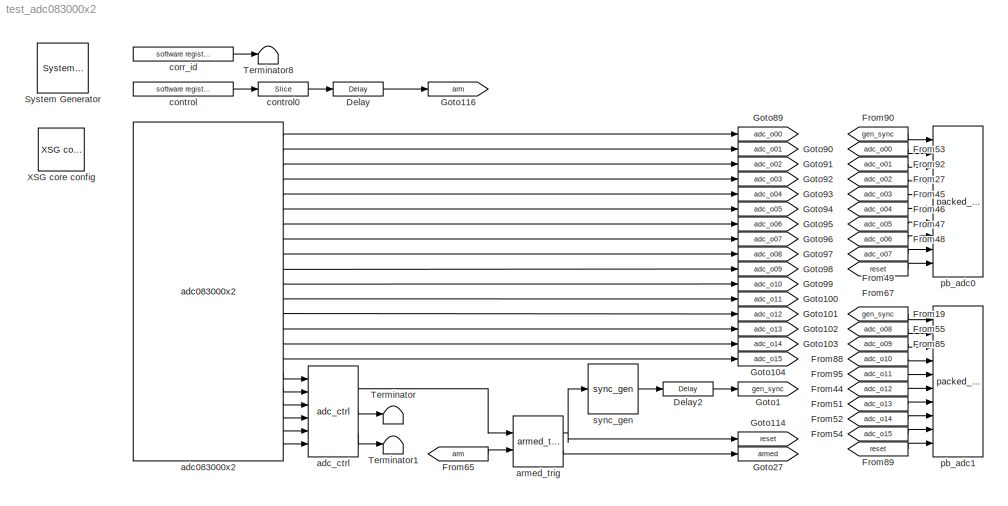
MODEL test_adc083000x2
KIND model
BLOCK [Reference]  System Generator  REF=xbsIndex_r4/ System Generator
  AttributesFormatString = System\\nGenerator
  FunctionWithSeparateData = off
  Ports = []
  RTWMemSecDataConstants = Inherit from model
  RTWMemSecDataInternal = Inherit from model
  RTWMemSecDataParameters = Inherit from model
  RTWMemSecFuncExecute = Inherit from model
  RTWMemSecFuncInitTerm = Inherit from model
  SID = 1
  ShowPortLabels = FromPortIcon
  SourceBlock = xbsIndex_r4/ System Generator
  SourceType = Xilinx System Generator Block
  SystemSampleTime = -1
  Tag = genX
  UserData = DataTag0
  UserDataPersistent = on
  block_type = sysgen
  block_version = 10.1.3
  clock_wrapper = Clock Enables
  core_generation = According to Block Masks
  dbl_ovrd = According to Block Masks
  dcm_input_clock_period = 100
  deprecated_control = off
  directory = ./test_adc083000x2/sysgen
  eval_field = 0
  has_advanced_control = 0
  incr_netlist = off
  infoedit = System Generator
  package = ff1136
  part = xc5vsx95t
  run_coregen = off
  sg_icon_stat = 51,50,-1,-1,red,beige,0,07734,right
  sg_mask_display = fprintf('','COMMENT: begin icon graphics');\npatch([0 51 51 0 ],[0 0 50 50 ],[0.93 0.92 0.86]);\npatch([12 4 16 4 12 25 29 33 47 36 25 17 29 17 25 36 47 33 29 25 12 ],[5 13 25 37 45 45 41 45 45 34 45 37 25 13 5 16 5 5 9 5 5 ],[0.6 0.2 0.25]);\nplot([0 51 51 0 0 ],[0 0 50 50 0 ]);\nfprintf('','COMMENT: end icon graphics');\nfprintf('','COMMENT: begin icon text');\nfprintf('','COMMENT: end icon text...<+5ch>
  sggui_pos = -1,-1,-1,-1
  simulink_period = 1
  speed = -1
  synthesis_tool = XST
  sysclk_period = 2.6667
  testbench = off
  trim_vbits = Everywhere in SubSystem
  xilinxfamily = virtex5
BLOCK [Reference] Delay  REF=xbsIndex_r4/Delay
  Ports = [1, 1]
  SID = 60
  SourceBlock = xbsIndex_r4/Delay
  SourceType = Xilinx Delay Block
  block_type = delay
  block_version = 11.3
  dbl_ovrd = off
  en = off
  has_advanced_control = 0
  infoedit = Hardware notes: A delay line is a chain, each link of which is an SRL16 followed by a flip-flop.
  latency = 1
  reg_retiming = on
  sg_icon_stat = 50,14,1,1,white,blue,0,07b98262,right,
  sg_mask_display = fprintf('','COMMENT: begin icon graphics');\npatch([0 1 1 0 ],[0 0 1 1 ],[0.77 0.82 0.91]);\npatch([0.42 0.38 0.44 0.38 0.42 0.5 0.52 0.54 0.62 0.56 0.5 0.46 0.52 0.46 0.5 0.56 0.62 0.54 0.52 0.5 0.42 ],[0.142857 0.285714 0.5 0.714286 0.857143 0.857143 0.785714 0.857143 0.857143 0.642857 0.857143 0.714286 0.5 0.285714 0.142857 0.357143 0.142857 0.142857 0.214286 0.142857 0.142857 ],[0.98 0.96 0.92...<+209ch>
  sggui_pos = 0,0,543,392
  xl_area = [0,0,0,0,0,0,0]
  xl_use_area = off
BLOCK [Reference] Delay2  REF=xbsIndex_r4/Delay
  Ports = [1, 1]
  SID = 109
  SourceBlock = xbsIndex_r4/Delay
  SourceType = Xilinx Delay Block
  block_type = delay
  block_version = 11.3
  dbl_ovrd = off
  en = off
  has_advanced_control = 0
  infoedit = Hardware notes: A delay line is a chain, each link of which is an SRL16 followed by a flip-flop.
  latency = 1
  reg_retiming = on
  sg_icon_stat = 50,14,1,1,white,blue,0,07b98262,right,
  sg_mask_display = fprintf('','COMMENT: begin icon graphics');\npatch([0 1 1 0 ],[0 0 1 1 ],[0.77 0.82 0.91]);\npatch([0.42 0.38 0.44 0.38 0.42 0.5 0.52 0.54 0.62 0.56 0.5 0.46 0.52 0.46 0.5 0.56 0.62 0.54 0.52 0.5 0.42 ],[0.142857 0.285714 0.5 0.714286 0.857143 0.857143 0.785714 0.857143 0.857143 0.642857 0.857143 0.714286 0.5 0.285714 0.142857 0.357143 0.142857 0.142857 0.214286 0.142857 0.142857 ],[0.98 0.96 0.92...<+209ch>
  sggui_pos = 0,0,543,392
  xl_area = [0,0,0,0,0,0,0]
  xl_use_area = off
BLOCK [From] From19
  CloseFcn = tagdialog Close
  GotoTag = gen_sync
  SID = 87
BLOCK [From] From27
  CloseFcn = tagdialog Close
  GotoTag = adc_o02
  SID = 88
BLOCK [From] From44
  CloseFcn = tagdialog Close
  GotoTag = adc_o12
  SID = 89
BLOCK [From] From45
  CloseFcn = tagdialog Close
  GotoTag = adc_o03
  SID = 90
BLOCK [From] From46
  CloseFcn = tagdialog Close
  GotoTag = adc_o04
  SID = 91
BLOCK [From] From47
  CloseFcn = tagdialog Close
  GotoTag = adc_o05
  SID = 92
BLOCK [From] From48
  CloseFcn = tagdialog Close
  GotoTag = adc_o06
  SID = 93
BLOCK [From] From49
  CloseFcn = tagdialog Close
  GotoTag = adc_o07
  SID = 94
BLOCK [From] From51
  CloseFcn = tagdialog Close
  GotoTag = adc_o13
  SID = 95
BLOCK [From] From52
  CloseFcn = tagdialog Close
  GotoTag = adc_o14
  SID = 96
BLOCK [From] From53
  CloseFcn = tagdialog Close
  GotoTag = adc_o00
  SID = 97
BLOCK [From] From54
  CloseFcn = tagdialog Close
  GotoTag = adc_o15
  SID = 98
BLOCK [From] From55
  CloseFcn = tagdialog Close
  GotoTag = adc_o08
  SID = 99
BLOCK [From] From65
  CloseFcn = tagdialog Close
  GotoTag = arm
  SID = 18
BLOCK [From] From67
  CloseFcn = tagdialog Close
  GotoTag = reset
  SID = 100
BLOCK [From] From85
  CloseFcn = tagdialog Close
  GotoTag = adc_o09
  SID = 101
BLOCK [From] From88
  CloseFcn = tagdialog Close
  GotoTag = adc_o10
  SID = 102
BLOCK [From] From89
  CloseFcn = tagdialog Close
  GotoTag = reset
  SID = 103
BLOCK [From] From90
  CloseFcn = tagdialog Close
  GotoTag = gen_sync
  SID = 104
BLOCK [From] From92
  CloseFcn = tagdialog Close
  GotoTag = adc_o01
  SID = 105
BLOCK [From] From95
  CloseFcn = tagdialog Close
  GotoTag = adc_o11
  SID = 106
BLOCK [Goto] Goto1
  GotoTag = gen_sync
  SID = 107
  TagVisibility = local
BLOCK [Goto] Goto100
  GotoTag = adc_o11
  SID = 71
  TagVisibility = local
BLOCK [Goto] Goto101
  GotoTag = adc_o12
  SID = 72
  TagVisibility = local
BLOCK [Goto] Goto102
  GotoTag = adc_o13
  SID = 73
  TagVisibility = local
BLOCK [Goto] Goto103
  GotoTag = adc_o14
  SID = 74
  TagVisibility = local
BLOCK [Goto] Goto104
  GotoTag = adc_o15
  SID = 75
  TagVisibility = local
BLOCK [Goto] Goto114
  GotoTag = reset
  SID = 27
  TagVisibility = local
BLOCK [Goto] Goto116
  GotoTag = arm
  SID = 28
  TagVisibility = local
BLOCK [Goto] Goto27
  GotoTag = armed
  SID = 30
  TagVisibility = local
BLOCK [Goto] Goto89
  GotoTag = adc_o00
  SID = 76
  TagVisibility = local
BLOCK [Goto] Goto90
  GotoTag = adc_o01
  SID = 77
  TagVisibility = local
BLOCK [Goto] Goto91
  GotoTag = adc_o02
  SID = 78
  TagVisibility = local
BLOCK [Goto] Goto92
  GotoTag = adc_o03
  SID = 79
  TagVisibility = local
BLOCK [Goto] Goto93
  GotoTag = adc_o04
  SID = 80
  TagVisibility = local
BLOCK [Goto] Goto94
  GotoTag = adc_o05
  SID = 81
  TagVisibility = local
BLOCK [Goto] Goto95
  GotoTag = adc_o06
  SID = 82
  TagVisibility = local
BLOCK [Goto] Goto96
  GotoTag = adc_o07
  SID = 83
  TagVisibility = local
BLOCK [Goto] Goto97
  GotoTag = adc_o08
  SID = 84
  TagVisibility = local
BLOCK [Goto] Goto98
  GotoTag = adc_o09
  SID = 85
  TagVisibility = local
BLOCK [Goto] Goto99
  GotoTag = adc_o10
  SID = 86
  TagVisibility = local
BLOCK [Terminator] Terminator
  SID = 44
BLOCK [Terminator] Terminator1
  SID = 45
BLOCK [Terminator] Terminator8
  SID = 112
BLOCK [Reference] XSG core config  REF=xps_library/XSG core config  (lib defined in mdl_00b5cec29cd0, mdl_02ab6ecaa3d1, +5 more)
  BEE2_ctrl_clk_src = sys_clk
  BEE2_usr_clk_src = sys_clk
  CORR_clk_src = sys_clk
  FunctionWithSeparateData = off
  Ports = []
  ROACH_clk_src = adc0_clk
  RTWMemSecDataConstants = Inherit from model
  RTWMemSecDataInternal = Inherit from model
  RTWMemSecDataParameters = Inherit from model
  RTWMemSecFuncExecute = Inherit from model
  RTWMemSecFuncInitTerm = Inherit from model
  SID = 46
  ShowPortLabels = FromPortIcon
  SourceBlock = xps_library/XSG core config
  SourceType = xsg core config
  SystemSampleTime = -1
  Tag = xps:xsg
  clk_rate = 200
  clk_src = adc0_clk
  gpio_clk_bit_index = 0
  gpio_clk_io_group = iBOB:sma
  hw_sys = ROACH:sx95t
  iBOB_clk_src = sys_clk
  ibob_linux = off
  mpc_type = powerpc440_ext
  sample_period = 1
  synthesis_tool = XST
BLOCK [Reference] adc083000x2  REF=xps_library/adc083000x2  (lib defined in mdl_00b5cec29cd0, mdl_02ab6ecaa3d1, +5 more)
  FunctionWithSeparateData = off
  Ports = [5, 22]
  RTWMemSecDataConstants = Inherit from model
  RTWMemSecDataInternal = Inherit from model
  RTWMemSecDataParameters = Inherit from model
  RTWMemSecFuncExecute = Inherit from model
  RTWMemSecFuncInitTerm = Inherit from model
  SID = 59
  ShowPortLabels = FromPortIcon
  SourceBlock = xps_library/adc083000x2
  SourceType = adc_083000x2
  SystemSampleTime = -1
  Tag = xps:adc083000x2
  adc_clk_rate = 800
  bit_width = 8
  clock_sync = on
  demux_adc = off
  sample_period = 1
  use_adc0 = on
  use_adc1 = on
  using_ctrl = off
  verbose = off
BLOCK [Reference] adc_ctrl  REF=isi_correlator_lib/adc_ctrl  (lib defined in mdl_4b72aa53f299)
  FunctionWithSeparateData = off
  Ports = [6, 3]
  RTWMemSecDataConstants = Inherit from model
  RTWMemSecDataInternal = Inherit from model
  RTWMemSecDataParameters = Inherit from model
  RTWMemSecFuncExecute = Inherit from model
  RTWMemSecFuncInitTerm = Inherit from model
  SID = 48
  ShowPortLabels = FromPortIcon
  SourceBlock = isi_correlator_lib/adc_ctrl
  SourceType = SubSystem
  SystemSampleTime = -1
BLOCK [Reference] armed_trig  REF=isi_correlator_lib/armed_trig  (lib defined in mdl_4b72aa53f299)
  FunctionWithSeparateData = off
  Ports = [2, 2]
  RTWMemSecDataConstants = Inherit from model
  RTWMemSecDataInternal = Inherit from model
  RTWMemSecDataParameters = Inherit from model
  RTWMemSecFuncExecute = Inherit from model
  RTWMemSecFuncInitTerm = Inherit from model
  SID = 50
  ShowPortLabels = FromPortIcon
  SourceBlock = isi_correlator_lib/armed_trig
  SourceType = SubSystem
  SystemSampleTime = -1
BLOCK [Reference] control  REF=xps_library/software register  (lib defined in mdl_00b5cec29cd0, mdl_02ab6ecaa3d1, +5 more)
  FunctionWithSeparateData = off
  Ports = [1, 1]
  RTWMemSecDataConstants = Inherit from model
  RTWMemSecDataInternal = Inherit from model
  RTWMemSecDataParameters = Inherit from model
  RTWMemSecFuncExecute = Inherit from model
  RTWMemSecFuncInitTerm = Inherit from model
  SID = 52
  ShowPortLabels = FromPortIcon
  SourceBlock = xps_library/software register
  SystemSampleTime = -1
  Tag = xps:sw_reg
  arith_type = Unsigned
  bin_pt = 0
  bitwidth = 32
  gw_name = test_adc083000x2_control_user_data_out
  io_dir = From Processor
  sample_period = 1
BLOCK [Reference] control0  REF=xbsIndex_r4/Slice
  Ports = [1, 1]
  SID = 53
  SourceBlock = xbsIndex_r4/Slice
  SourceType = Xilinx Bit Slice Extractor Block
  base0 = LSB of Input
  base1 = MSB of Input
  bit0 = 0
  bit1 = 0
  block_type = slice
  block_version = 10.1.3
  boolean_output = on
  dbl_ovrd = off
  has_advanced_control = 0
  infoedit = Extracts a given range of bits from each input sample and presents it at the output.  The output type is ordinarily unsigned with binary point at zero, but can be Boolean when the slice is one bit wide.<P><P>Hardware notes: In hardware this block costs nothing.
  mode = Lower Bit Location + Width
  nbits = 1
  sg_icon_stat = 50,14,1,1,white,blue,0,1fd851a7,right,
  sg_mask_display = fprintf('','COMMENT: begin icon graphics');\npatch([0 1 1 0 ],[0 0 1 1 ],[0.77 0.82 0.91]);\npatch([0.42 0.38 0.44 0.38 0.42 0.5 0.52 0.54 0.62 0.56 0.5 0.46 0.52 0.46 0.5 0.56 0.62 0.54 0.52 0.5 0.42 ],[0.142857 0.285714 0.5 0.714286 0.857143 0.857143 0.785714 0.857143 0.857143 0.642857 0.857143 0.714286 0.5 0.285714 0.142857 0.357143 0.142857 0.142857 0.214286 0.142857 0.142857 ],[0.98 0.96 0.92...<+210ch>
  sggui_pos = 20,20,631,621
BLOCK [Reference] corr_id  REF=xps_library/software register  (lib defined in mdl_00b5cec29cd0, mdl_02ab6ecaa3d1, +5 more)
  FunctionWithSeparateData = off
  Ports = [1, 1]
  RTWMemSecDataConstants = Inherit from model
  RTWMemSecDataInternal = Inherit from model
  RTWMemSecDataParameters = Inherit from model
  RTWMemSecFuncExecute = Inherit from model
  RTWMemSecFuncInitTerm = Inherit from model
  SID = 110
  ShowPortLabels = FromPortIcon
  SourceBlock = xps_library/software register
  SystemSampleTime = -1
  Tag = xps:sw_reg
  arith_type = Unsigned
  bin_pt = 0
  bitwidth = 32
  gw_name = test_adc083000x2_corr_id_user_data_out
  io_dir = From Processor
  sample_period = 1
BLOCK [Reference] pb_adc0  REF=isi_correlator_lib/packed_bram  (lib defined in mdl_4b72aa53f299)
  AttributesFormatString = size = 512B
  FunctionWithSeparateData = off
  Ports = [10]
  RTWMemSecDataConstants = Inherit from model
  RTWMemSecDataInternal = Inherit from model
  RTWMemSecDataParameters = Inherit from model
  RTWMemSecFuncExecute = Inherit from model
  RTWMemSecFuncInitTerm = Inherit from model
  SID = 68
  ShowPortLabels = FromPortIcon
  SourceBlock = isi_correlator_lib/packed_bram
  SystemSampleTime = -1
  bit_width = 8
  fanin_latency = 3
  window_length = 16
BLOCK [Reference] pb_adc1  REF=isi_correlator_lib/packed_bram  (lib defined in mdl_4b72aa53f299)
  AttributesFormatString = size = 512B
  FunctionWithSeparateData = off
  Ports = [10]
  RTWMemSecDataConstants = Inherit from model
  RTWMemSecDataInternal = Inherit from model
  RTWMemSecDataParameters = Inherit from model
  RTWMemSecFuncExecute = Inherit from model
  RTWMemSecFuncInitTerm = Inherit from model
  SID = 69
  ShowPortLabels = FromPortIcon
  SourceBlock = isi_correlator_lib/packed_bram
  SystemSampleTime = -1
  bit_width = 8
  fanin_latency = 3
  window_length = 16
BLOCK [Reference] sync_gen  REF=isi_correlator_lib/sync_gen  (lib defined in mdl_4b72aa53f299)
  FunctionWithSeparateData = off
  Ports = [1, 1]
  RTWMemSecDataConstants = Inherit from model
  RTWMemSecDataInternal = Inherit from model
  RTWMemSecDataParameters = Inherit from model
  RTWMemSecFuncExecute = Inherit from model
  RTWMemSecFuncInitTerm = Inherit from model
  SID = 58
  ShowPortLabels = FromPortIcon
  SourceBlock = isi_correlator_lib/sync_gen
  SourceType = sync_gen
  SystemSampleTime = -1
  UserData = DataTag1
  UserDataPersistent = on
LINE Delay2:1 -> Goto1:1
LINE Delay:1 -> Goto116:1
LINE From19:1 -> pb_adc1:1
LINE From27:1 -> pb_adc0:4
LINE From44:1 -> pb_adc1:6
LINE From45:1 -> pb_adc0:5
LINE From46:1 -> pb_adc0:6
LINE From47:1 -> pb_adc0:7
LINE From48:1 -> pb_adc0:8
LINE From49:1 -> pb_adc0:9
LINE From51:1 -> pb_adc1:7
LINE From52:1 -> pb_adc1:8
LINE From53:1 -> pb_adc0:2
LINE From54:1 -> pb_adc1:9
LINE From55:1 -> pb_adc1:2
LINE From65:1 -> armed_trig:2
LINE From67:1 -> pb_adc0:10
LINE From85:1 -> pb_adc1:3
LINE From88:1 -> pb_adc1:4
LINE From89:1 -> pb_adc1:10
LINE From90:1 -> pb_adc0:1
LINE From92:1 -> pb_adc0:3
LINE From95:1 -> pb_adc1:5
LINE adc083000x2:1 -> Goto89:1
LINE adc083000x2:10 -> Goto98:1
LINE adc083000x2:11 -> Goto99:1
LINE adc083000x2:12 -> Goto100:1
LINE adc083000x2:13 -> Goto101:1
LINE adc083000x2:14 -> Goto102:1
LINE adc083000x2:15 -> Goto103:1
LINE adc083000x2:16 -> Goto104:1
LINE adc083000x2:17 -> adc_ctrl:1
LINE adc083000x2:18 -> adc_ctrl:2
LINE adc083000x2:19 -> adc_ctrl:3
LINE adc083000x2:2 -> Goto90:1
LINE adc083000x2:20 -> adc_ctrl:4
LINE adc083000x2:21 -> adc_ctrl:5
LINE adc083000x2:22 -> adc_ctrl:6
LINE adc083000x2:3 -> Goto91:1
LINE adc083000x2:4 -> Goto92:1
LINE adc083000x2:5 -> Goto93:1
LINE adc083000x2:6 -> Goto94:1
LINE adc083000x2:7 -> Goto95:1
LINE adc083000x2:8 -> Goto96:1
LINE adc083000x2:9 -> Goto97:1
LINE adc_ctrl:1 -> armed_trig:1
LINE adc_ctrl:2 -> Terminator:1
LINE adc_ctrl:3 -> Terminator1:1
NET armed_trig:1 -> Goto114:1, sync_gen:1
LINE armed_trig:2 -> Goto27:1
LINE control0:1 -> Delay:1
LINE control:1 -> control0:1
LINE corr_id:1 -> Terminator8:1
LINE sync_gen:1 -> Delay2:1
note: NET lines group one-source signal fan-out (src -> all destinations, sorted); 1:1 wires keep LINE
